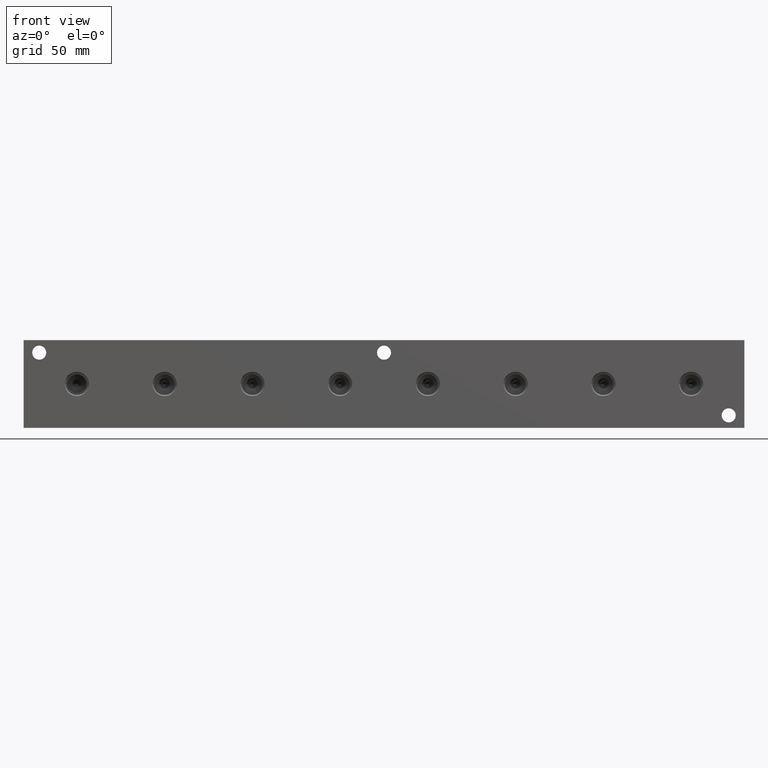
[diagram: clean part render]
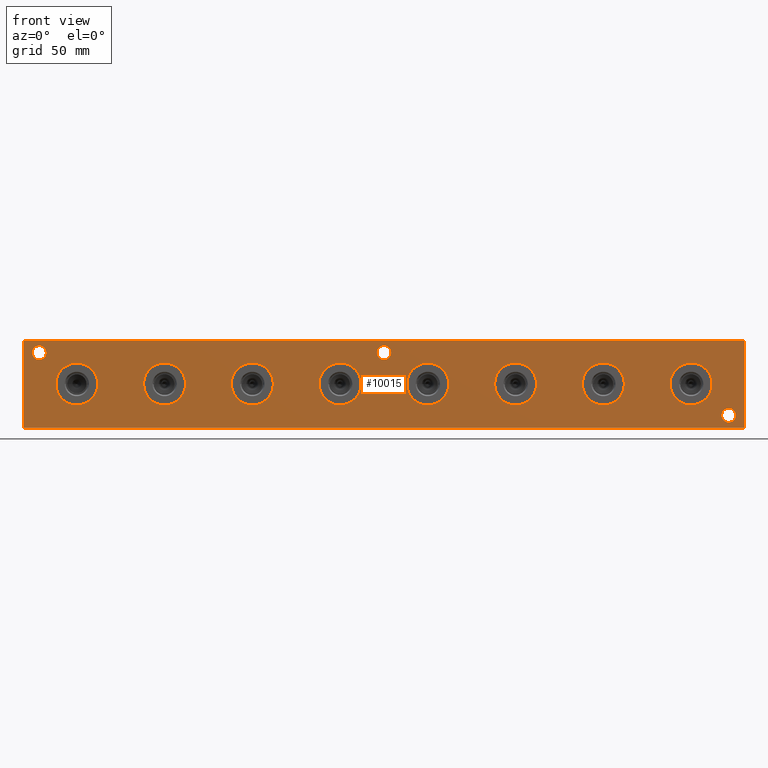
[diagram: same view with one face highlighted and labeled with its STEP entity id]
A machine part, front view. The second image highlights one B-rep face of the part: STEP entity #10015.
In plain terms, the highlighted planar face has unit normal (0, -1, 0).
Its self-contained STEP definition (entity closure, byte-faithful):
#269=CIRCLE('',#10260,3.5687);
#270=CIRCLE('',#10261,3.5687);
#272=CIRCLE('',#10270,3.5687);
#273=CIRCLE('',#10271,3.5687);
#275=CIRCLE('',#10279,3.5687);
#276=CIRCLE('',#10280,3.5687);
#356=CIRCLE('',#10420,10.6426);
#357=CIRCLE('',#10421,10.6426);
#361=CIRCLE('',#10437,10.6426);
#362=CIRCLE('',#10438,10.6426);
#366=CIRCLE('',#10454,10.6426);
#367=CIRCLE('',#10455,10.6426);
#371=CIRCLE('',#10463,10.6426);
#372=CIRCLE('',#10464,10.6426);
#376=CIRCLE('',#10480,10.6426);
#377=CIRCLE('',#10481,10.6426);
#381=CIRCLE('',#10497,10.6426);
#382=CIRCLE('',#10498,10.6426);
#386=CIRCLE('',#10514,10.6426);
#387=CIRCLE('',#10515,10.6426);
#391=CIRCLE('',#10531,10.6426);
#392=CIRCLE('',#10532,10.6426);
#636=FACE_BOUND('',#2035,.T.);
#637=FACE_BOUND('',#2036,.T.);
#638=FACE_BOUND('',#2037,.T.);
#639=FACE_BOUND('',#2038,.T.);
#640=FACE_BOUND('',#2039,.T.);
#641=FACE_BOUND('',#2040,.T.);
#642=FACE_BOUND('',#2041,.T.);
#643=FACE_BOUND('',#2042,.T.);
#644=FACE_BOUND('',#2043,.T.);
#645=FACE_BOUND('',#2044,.T.);
#646=FACE_BOUND('',#2045,.T.);
#894=PLANE('',#10816);
#1423=FACE_OUTER_BOUND('',#2034,.T.);
#2034=EDGE_LOOP('',(#9038,#9039,#9040,#9041));
#2035=EDGE_LOOP('',(#9042,#9043));
#2036=EDGE_LOOP('',(#9044,#9045));
#2037=EDGE_LOOP('',(#9046,#9047));
#2038=EDGE_LOOP('',(#9048,#9049));
#2039=EDGE_LOOP('',(#9050,#9051));
#2040=EDGE_LOOP('',(#9052,#9053));
#2041=EDGE_LOOP('',(#9054,#9055));
#2042=EDGE_LOOP('',(#9056,#9057));
#2043=EDGE_LOOP('',(#9058,#9059));
#2044=EDGE_LOOP('',(#9060,#9061));
#2045=EDGE_LOOP('',(#9062,#9063));
#2309=LINE('',#15478,#3128);
#2863=LINE('',#17511,#3682);
#2868=LINE('',#17520,#3687);
#2869=LINE('',#17522,#3688);
#3128=VECTOR('',#11205,10.);
#3682=VECTOR('',#13197,10.);
#3687=VECTOR('',#13206,10.);
#3688=VECTOR('',#13209,10.);
#4217=VERTEX_POINT('',#15476);
#4218=VERTEX_POINT('',#15477);
#4505=VERTEX_POINT('',#16438);
#4506=VERTEX_POINT('',#16439);
#4510=VERTEX_POINT('',#16456);
#4511=VERTEX_POINT('',#16457);
#4515=VERTEX_POINT('',#16472);
#4516=VERTEX_POINT('',#16473);
#4604=VERTEX_POINT('',#16742);
#4605=VERTEX_POINT('',#16743);
#4615=VERTEX_POINT('',#16774);
#4616=VERTEX_POINT('',#16775);
#4626=VERTEX_POINT('',#16806);
#4627=VERTEX_POINT('',#16807);
#4632=VERTEX_POINT('',#16824);
#4633=VERTEX_POINT('',#16825);
#4643=VERTEX_POINT('',#16856);
#4644=VERTEX_POINT('',#16857);
#4654=VERTEX_POINT('',#16888);
#4655=VERTEX_POINT('',#16889);
#4665=VERTEX_POINT('',#16920);
#4666=VERTEX_POINT('',#16921);
#4676=VERTEX_POINT('',#16952);
#4677=VERTEX_POINT('',#16953);
#4850=VERTEX_POINT('',#17509);
#4852=VERTEX_POINT('',#17518);
#5315=EDGE_CURVE('',#4217,#4218,#2309,.T.);
#5734=EDGE_CURVE('',#4505,#4506,#269,.T.);
#5735=EDGE_CURVE('',#4506,#4505,#270,.T.);
#5744=EDGE_CURVE('',#4510,#4511,#272,.T.);
#5745=EDGE_CURVE('',#4511,#4510,#273,.T.);
#5753=EDGE_CURVE('',#4515,#4516,#275,.T.);
#5754=EDGE_CURVE('',#4516,#4515,#276,.T.);
#5885=EDGE_CURVE('',#4604,#4605,#356,.T.);
#5886=EDGE_CURVE('',#4605,#4604,#357,.T.);
#5901=EDGE_CURVE('',#4615,#4616,#361,.T.);
#5902=EDGE_CURVE('',#4616,#4615,#362,.T.);
#5917=EDGE_CURVE('',#4626,#4627,#366,.T.);
#5918=EDGE_CURVE('',#4627,#4626,#367,.T.);
#5925=EDGE_CURVE('',#4632,#4633,#371,.T.);
#5926=EDGE_CURVE('',#4633,#4632,#372,.T.);
#5941=EDGE_CURVE('',#4643,#4644,#376,.T.);
#5942=EDGE_CURVE('',#4644,#4643,#377,.T.);
#5957=EDGE_CURVE('',#4654,#4655,#381,.T.);
#5958=EDGE_CURVE('',#4655,#4654,#382,.T.);
#5973=EDGE_CURVE('',#4665,#4666,#386,.T.);
#5974=EDGE_CURVE('',#4666,#4665,#387,.T.);
#5989=EDGE_CURVE('',#4676,#4677,#391,.T.);
#5990=EDGE_CURVE('',#4677,#4676,#392,.T.);
#6253=EDGE_CURVE('',#4850,#4217,#2863,.T.);
#6258=EDGE_CURVE('',#4852,#4218,#2868,.T.);
#6259=EDGE_CURVE('',#4850,#4852,#2869,.T.);
#9038=ORIENTED_EDGE('',*,*,#6259,.T.);
#9039=ORIENTED_EDGE('',*,*,#6258,.T.);
#9040=ORIENTED_EDGE('',*,*,#5315,.F.);
#9041=ORIENTED_EDGE('',*,*,#6253,.F.);
#9042=ORIENTED_EDGE('',*,*,#5734,.T.);
#9043=ORIENTED_EDGE('',*,*,#5735,.T.);
#9044=ORIENTED_EDGE('',*,*,#5744,.T.);
#9045=ORIENTED_EDGE('',*,*,#5745,.T.);
#9046=ORIENTED_EDGE('',*,*,#5753,.T.);
#9047=ORIENTED_EDGE('',*,*,#5754,.T.);
#9048=ORIENTED_EDGE('',*,*,#5885,.T.);
#9049=ORIENTED_EDGE('',*,*,#5886,.T.);
#9050=ORIENTED_EDGE('',*,*,#5901,.T.);
#9051=ORIENTED_EDGE('',*,*,#5902,.T.);
#9052=ORIENTED_EDGE('',*,*,#5917,.T.);
#9053=ORIENTED_EDGE('',*,*,#5918,.T.);
#9054=ORIENTED_EDGE('',*,*,#5925,.T.);
#9055=ORIENTED_EDGE('',*,*,#5926,.T.);
#9056=ORIENTED_EDGE('',*,*,#5941,.T.);
#9057=ORIENTED_EDGE('',*,*,#5942,.T.);
#9058=ORIENTED_EDGE('',*,*,#5957,.T.);
#9059=ORIENTED_EDGE('',*,*,#5958,.T.);
#9060=ORIENTED_EDGE('',*,*,#5973,.T.);
#9061=ORIENTED_EDGE('',*,*,#5974,.T.);
#9062=ORIENTED_EDGE('',*,*,#5989,.T.);
#9063=ORIENTED_EDGE('',*,*,#5990,.T.);
#10015=ADVANCED_FACE('',(#1423,#636,#637,#638,#639,#640,#641,#642,#643,
#644,#645,#646),#894,.T.);
#10260=AXIS2_PLACEMENT_3D('',#16440,#11916,#11917);
#10261=AXIS2_PLACEMENT_3D('',#16441,#11918,#11919);
#10270=AXIS2_PLACEMENT_3D('',#16458,#11939,#11940);
#10271=AXIS2_PLACEMENT_3D('',#16459,#11941,#11942);
#10279=AXIS2_PLACEMENT_3D('',#16474,#11959,#11960);
#10280=AXIS2_PLACEMENT_3D('',#16475,#11961,#11962);
#10420=AXIS2_PLACEMENT_3D('',#16744,#12281,#12282);
#10421=AXIS2_PLACEMENT_3D('',#16745,#12283,#12284);
#10437=AXIS2_PLACEMENT_3D('',#16776,#12319,#12320);
#10438=AXIS2_PLACEMENT_3D('',#16777,#12321,#12322);
#10454=AXIS2_PLACEMENT_3D('',#16808,#12357,#12358);
#10455=AXIS2_PLACEMENT_3D('',#16809,#12359,#12360);
#10463=AXIS2_PLACEMENT_3D('',#16826,#12378,#12379);
#10464=AXIS2_PLACEMENT_3D('',#16827,#12380,#12381);
#10480=AXIS2_PLACEMENT_3D('',#16858,#12416,#12417);
#10481=AXIS2_PLACEMENT_3D('',#16859,#12418,#12419);
#10497=AXIS2_PLACEMENT_3D('',#16890,#12454,#12455);
#10498=AXIS2_PLACEMENT_3D('',#16891,#12456,#12457);
#10514=AXIS2_PLACEMENT_3D('',#16922,#12492,#12493);
#10515=AXIS2_PLACEMENT_3D('',#16923,#12494,#12495);
#10531=AXIS2_PLACEMENT_3D('',#16954,#12530,#12531);
#10532=AXIS2_PLACEMENT_3D('',#16955,#12532,#12533);
#10816=AXIS2_PLACEMENT_3D('',#17521,#13207,#13208);
#11205=DIRECTION('',(1.,0.,0.));
#11916=DIRECTION('center_axis',(0.,1.,0.));
#11917=DIRECTION('ref_axis',(1.,0.,0.));
#11918=DIRECTION('center_axis',(0.,1.,0.));
#11919=DIRECTION('ref_axis',(1.,0.,0.));
#11939=DIRECTION('center_axis',(0.,1.,0.));
#11940=DIRECTION('ref_axis',(1.,0.,0.));
#11941=DIRECTION('center_axis',(0.,1.,0.));
#11942=DIRECTION('ref_axis',(1.,0.,0.));
#11959=DIRECTION('center_axis',(0.,1.,0.));
#11960=DIRECTION('ref_axis',(1.,0.,0.));
#11961=DIRECTION('center_axis',(0.,1.,0.));
#11962=DIRECTION('ref_axis',(1.,0.,0.));
#12281=DIRECTION('center_axis',(0.,1.,0.));
#12282=DIRECTION('ref_axis',(1.,0.,0.));
#12283=DIRECTION('center_axis',(0.,1.,0.));
#12284=DIRECTION('ref_axis',(1.,0.,0.));
#12319=DIRECTION('center_axis',(0.,1.,0.));
#12320=DIRECTION('ref_axis',(1.,0.,0.));
#12321=DIRECTION('center_axis',(0.,1.,0.));
#12322=DIRECTION('ref_axis',(1.,0.,0.));
#12357=DIRECTION('center_axis',(0.,1.,0.));
#12358=DIRECTION('ref_axis',(1.,0.,0.));
#12359=DIRECTION('center_axis',(0.,1.,0.));
#12360=DIRECTION('ref_axis',(1.,0.,0.));
#12378=DIRECTION('center_axis',(0.,1.,0.));
#12379=DIRECTION('ref_axis',(1.,0.,0.));
#12380=DIRECTION('center_axis',(0.,1.,0.));
#12381=DIRECTION('ref_axis',(1.,0.,0.));
#12416=DIRECTION('center_axis',(0.,1.,0.));
#12417=DIRECTION('ref_axis',(1.,0.,0.));
#12418=DIRECTION('center_axis',(0.,1.,0.));
#12419=DIRECTION('ref_axis',(1.,0.,0.));
#12454=DIRECTION('center_axis',(0.,1.,0.));
#12455=DIRECTION('ref_axis',(1.,0.,0.));
#12456=DIRECTION('center_axis',(0.,1.,0.));
#12457=DIRECTION('ref_axis',(1.,0.,0.));
#12492=DIRECTION('center_axis',(0.,1.,0.));
#12493=DIRECTION('ref_axis',(1.,0.,0.));
#12494=DIRECTION('center_axis',(0.,1.,0.));
#12495=DIRECTION('ref_axis',(1.,0.,0.));
#12530=DIRECTION('center_axis',(0.,1.,0.));
#12531=DIRECTION('ref_axis',(1.,0.,0.));
#12532=DIRECTION('center_axis',(0.,1.,0.));
#12533=DIRECTION('ref_axis',(1.,0.,0.));
#13197=DIRECTION('',(0.,0.,1.));
#13206=DIRECTION('',(0.,0.,1.));
#13207=DIRECTION('center_axis',(0.,-1.,0.));
#13208=DIRECTION('ref_axis',(1.,0.,0.));
#13209=DIRECTION('',(1.,0.,0.));
#15476=CARTESIAN_POINT('',(0.,0.,44.45));
#15477=CARTESIAN_POINT('',(365.125,0.,44.45));
#15478=CARTESIAN_POINT('',(0.,0.,44.45));
#16438=CARTESIAN_POINT('',(360.7435,0.,6.35));
#16439=CARTESIAN_POINT('',(353.6061,0.,6.35));
#16440=CARTESIAN_POINT('Origin',(357.1748,0.,6.35));
#16441=CARTESIAN_POINT('Origin',(357.1748,0.,6.35));
#16456=CARTESIAN_POINT('',(11.4935,0.,38.1));
#16457=CARTESIAN_POINT('',(4.3561,0.,38.1));
#16458=CARTESIAN_POINT('Origin',(7.9248,0.,38.1));
#16459=CARTESIAN_POINT('Origin',(7.9248,0.,38.1));
#16472=CARTESIAN_POINT('',(186.1439,0.,38.1));
#16473=CARTESIAN_POINT('',(179.0065,0.,38.1));
#16474=CARTESIAN_POINT('Origin',(182.5752,0.,38.1));
#16475=CARTESIAN_POINT('Origin',(182.5752,0.,38.1));
#16742=CARTESIAN_POINT('',(304.3174,0.,22.225));
#16743=CARTESIAN_POINT('',(283.0322,0.,22.225));
#16744=CARTESIAN_POINT('Origin',(293.6748,0.,22.225));
#16745=CARTESIAN_POINT('Origin',(293.6748,0.,22.225));
#16774=CARTESIAN_POINT('',(215.4174,0.,22.225));
#16775=CARTESIAN_POINT('',(194.1322,0.,22.225));
#16776=CARTESIAN_POINT('Origin',(204.7748,0.,22.225));
#16777=CARTESIAN_POINT('Origin',(204.7748,0.,22.225));
#16806=CARTESIAN_POINT('',(126.5174,0.,22.225));
#16807=CARTESIAN_POINT('',(105.2322,0.,22.225));
#16808=CARTESIAN_POINT('Origin',(115.8748,0.,22.225));
#16809=CARTESIAN_POINT('Origin',(115.8748,0.,22.225));
#16824=CARTESIAN_POINT('',(37.6174,0.,22.225));
#16825=CARTESIAN_POINT('',(16.3322,0.,22.225));
#16826=CARTESIAN_POINT('Origin',(26.9748,0.,22.225));
#16827=CARTESIAN_POINT('Origin',(26.9748,0.,22.225));
#16856=CARTESIAN_POINT('',(82.0674,0.,22.225));
#16857=CARTESIAN_POINT('',(60.7822,0.,22.225));
#16858=CARTESIAN_POINT('Origin',(71.4248,0.,22.225));
#16859=CARTESIAN_POINT('Origin',(71.4248,0.,22.225));
#16888=CARTESIAN_POINT('',(170.9674,0.,22.225));
#16889=CARTESIAN_POINT('',(149.6822,0.,22.225));
#16890=CARTESIAN_POINT('Origin',(160.3248,0.,22.225));
#16891=CARTESIAN_POINT('Origin',(160.3248,0.,22.225));
#16920=CARTESIAN_POINT('',(259.8674,0.,22.225));
#16921=CARTESIAN_POINT('',(238.5822,0.,22.225));
#16922=CARTESIAN_POINT('Origin',(249.2248,0.,22.225));
#16923=CARTESIAN_POINT('Origin',(249.2248,0.,22.225));
#16952=CARTESIAN_POINT('',(348.7674,0.,22.225));
#16953=CARTESIAN_POINT('',(327.4822,0.,22.225));
#16954=CARTESIAN_POINT('Origin',(338.1248,0.,22.225));
#16955=CARTESIAN_POINT('Origin',(338.1248,0.,22.225));
#17509=CARTESIAN_POINT('',(0.,0.,0.));
#17511=CARTESIAN_POINT('',(0.,0.,0.));
#17518=CARTESIAN_POINT('',(365.125,0.,0.));
#17520=CARTESIAN_POINT('',(365.125,0.,0.));
#17521=CARTESIAN_POINT('Origin',(0.,0.,0.));
#17522=CARTESIAN_POINT('',(0.,0.,0.));